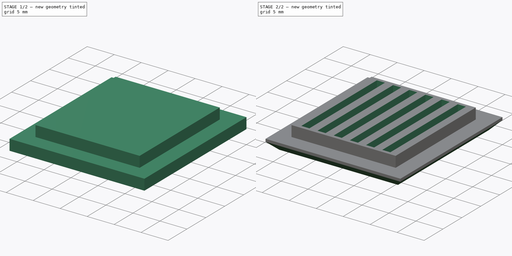
[diagram: build sequence overview — one tinted view per stage of 2, left to right]
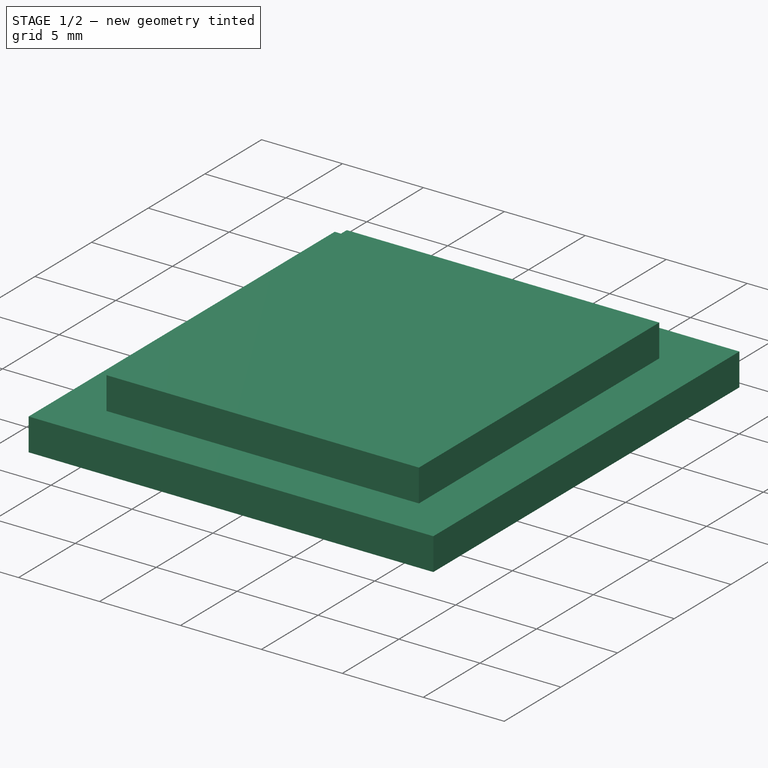
[diagram: stage 1 of 2 — iso view after this stage's code; geometry added in this stage tinted green]
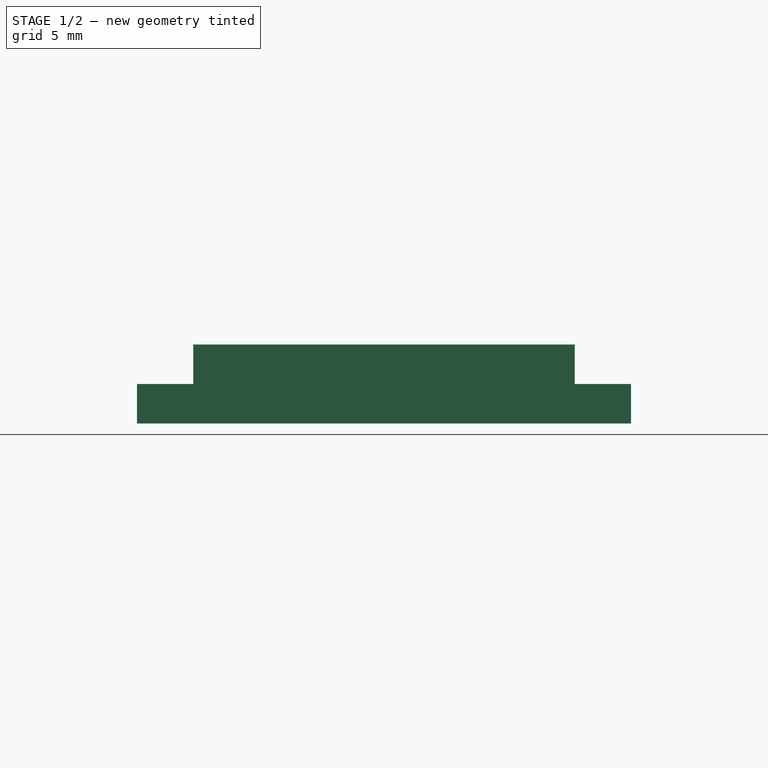
[diagram: stage 1 of 2 — front view after this stage's code; geometry added in this stage tinted green]
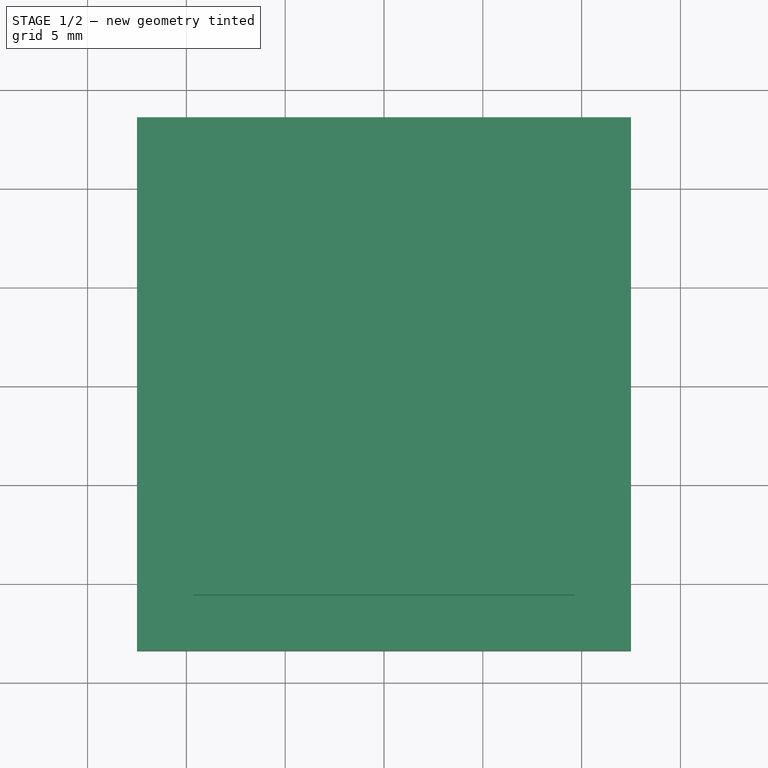
[diagram: stage 1 of 2 — top view after this stage's code; geometry added in this stage tinted green]
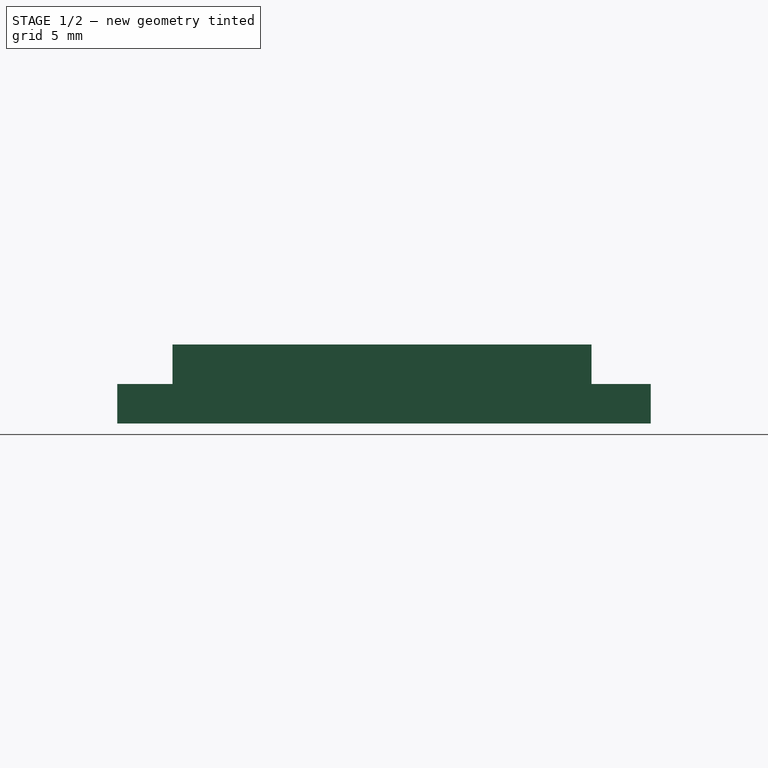
[diagram: stage 1 of 2 — right view after this stage's code; geometry added in this stage tinted green]
FCSTD DOCUMENT  (FreeCAD 0.19R19180 (Git))
Label: side_grill
License: All rights reserved
LicenseURL: http://en.wikipedia.org/wiki/All_rights_reserved
objects: Sketcher::SketchObject×3, PartDesign::Pad×2, PartDesign::Pocket×1, PartDesign::Chamfer×1, PartDesign::Body×1
note: 11 computed .brp shape members not serialized (recipe doc carries the construction recipe); baked Part::Feature solids carry a one-line shape summary decoded from their .brp

FEATURE [Sketcher::SketchObject] Sketch
  MapMode = 5
  Support = -> [XY_Plane]
  sketch-geometry (4):
    g0: LineSegment StartX=-12.5 StartY=13.6 StartZ=0 EndX=12.5 EndY=13.6 EndZ=0
    g1: LineSegment StartX=12.5 StartY=13.6 StartZ=0 EndX=12.5 EndY=-13.4 EndZ=0
    g2: LineSegment StartX=12.5 StartY=-13.4 StartZ=0 EndX=-12.5 EndY=-13.4 EndZ=0
    g3: LineSegment StartX=-12.5 StartY=-13.4 StartZ=0 EndX=-12.5 EndY=13.6 EndZ=0
  constraints (12):
    c: Coincident(g0,g1)
    c: Coincident(g1,g2)
    c: Coincident(g2,g3)
    c: Coincident(g3,g0)
    c: Horizontal(g0)
    c: Horizontal(g2)
    c: Vertical(g1)
    c: Vertical(g3)
    c: DistanceX(g0,g0) = 25
    c: DistanceY(g3,g3) = 27
    c: DistanceX(g0,g-1) = 12.5
    c: DistanceY(g-1,g0) = 13.6
FEATURE [PartDesign::Pad] Pad
  Length = 2
  Length2 = 100
  Profile = -> Sketch
  Type = 0
FEATURE [Sketcher::SketchObject] Sketch001
  MapMode = 5
  Placement = pos=(0,0,2) rot=(0,0,1;0rad)
  Support = -> [Pad]
  sketch-geometry (4):
    g0: LineSegment StartX=-9.65 StartY=10.6 StartZ=0 EndX=9.65 EndY=10.6 EndZ=0
    g1: LineSegment StartX=9.65 StartY=10.6 StartZ=0 EndX=9.65 EndY=-10.6 EndZ=0
    g2: LineSegment StartX=9.65 StartY=-10.6 StartZ=0 EndX=-9.65 EndY=-10.6 EndZ=0
    g3: LineSegment StartX=-9.65 StartY=-10.6 StartZ=0 EndX=-9.65 EndY=10.6 EndZ=0
  constraints (12):
    c: Coincident(g0,g1)
    c: Coincident(g1,g2)
    c: Coincident(g2,g3)
    c: Coincident(g3,g0)
    c: Horizontal(g0)
    c: Horizontal(g2)
    c: Vertical(g1)
    c: Vertical(g3)
    c: DistanceX(g0,g0) = 19.3
    c: DistanceY(g3,g3) = 21.2
    c: DistanceX(g0,g-1) = 9.65
    c: DistanceY(g-1,g0) = 10.6
FEATURE [PartDesign::Pad] Pad001
  BaseFeature = -> Pad
  Length = 2
  Length2 = 100
  Profile = -> Sketch001
  Type = 0
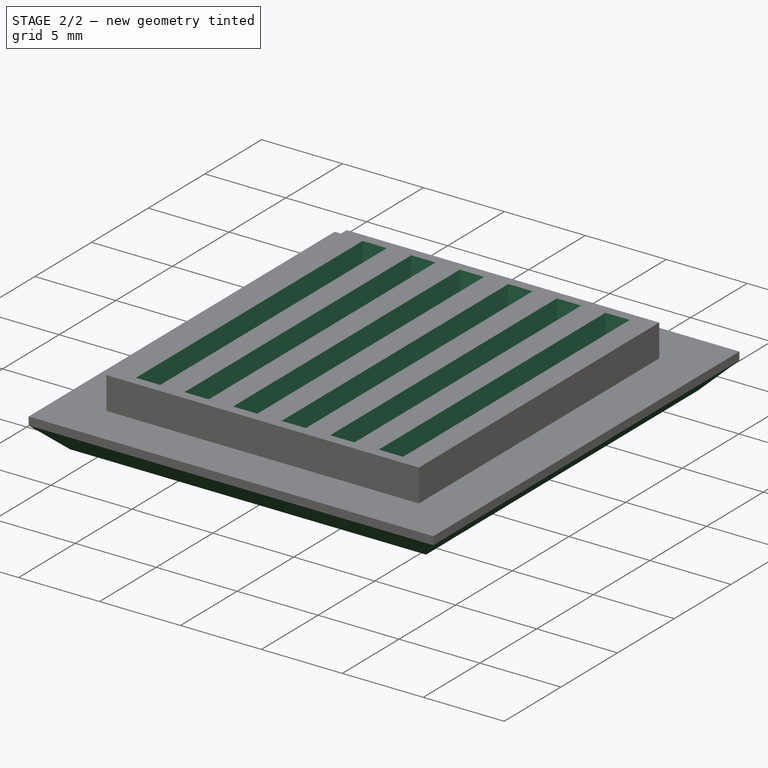
[diagram: stage 2 of 2 — iso view after this stage's code; geometry added in this stage tinted green]
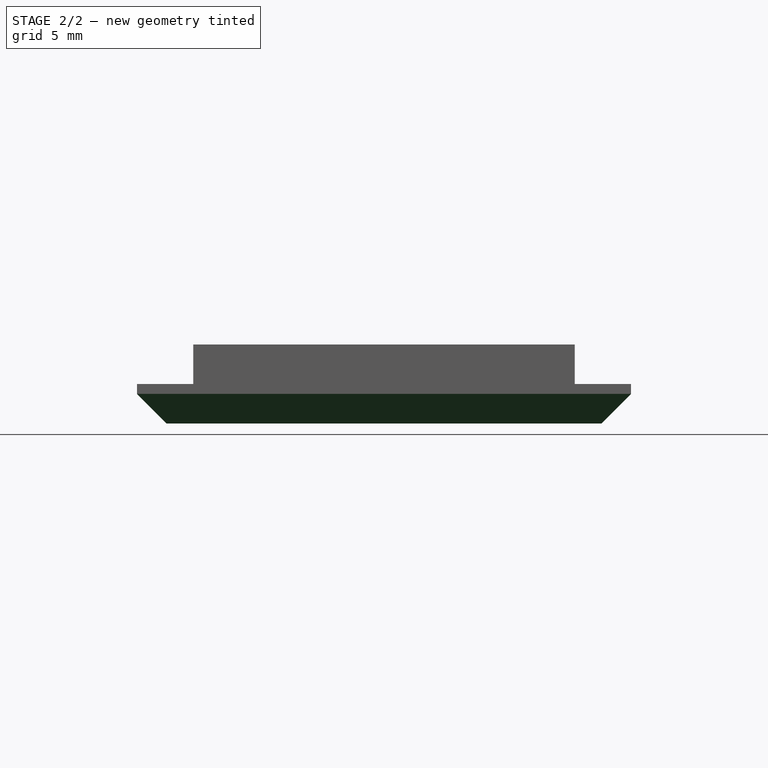
[diagram: stage 2 of 2 — front view after this stage's code; geometry added in this stage tinted green]
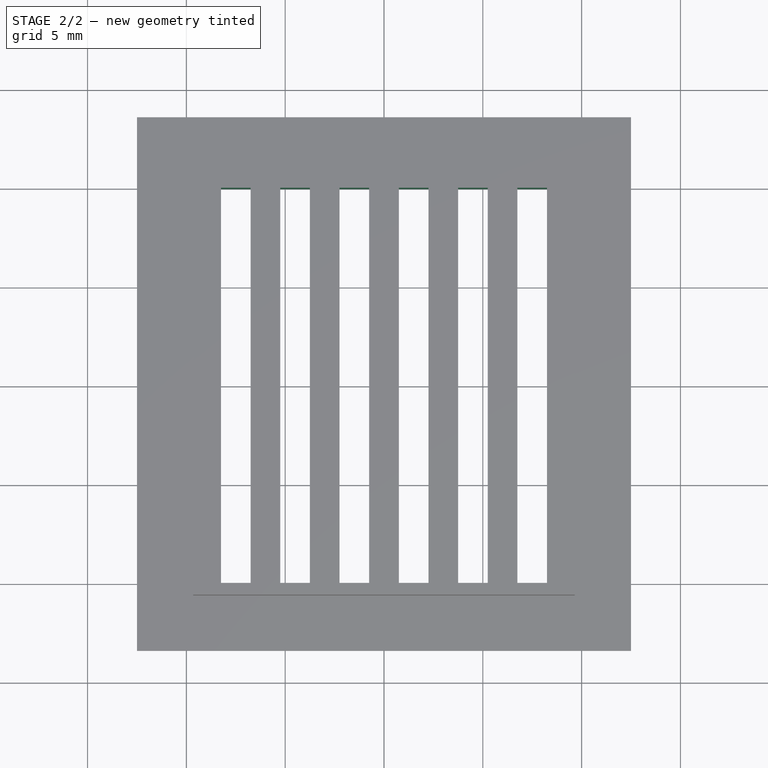
[diagram: stage 2 of 2 — top view after this stage's code; geometry added in this stage tinted green]
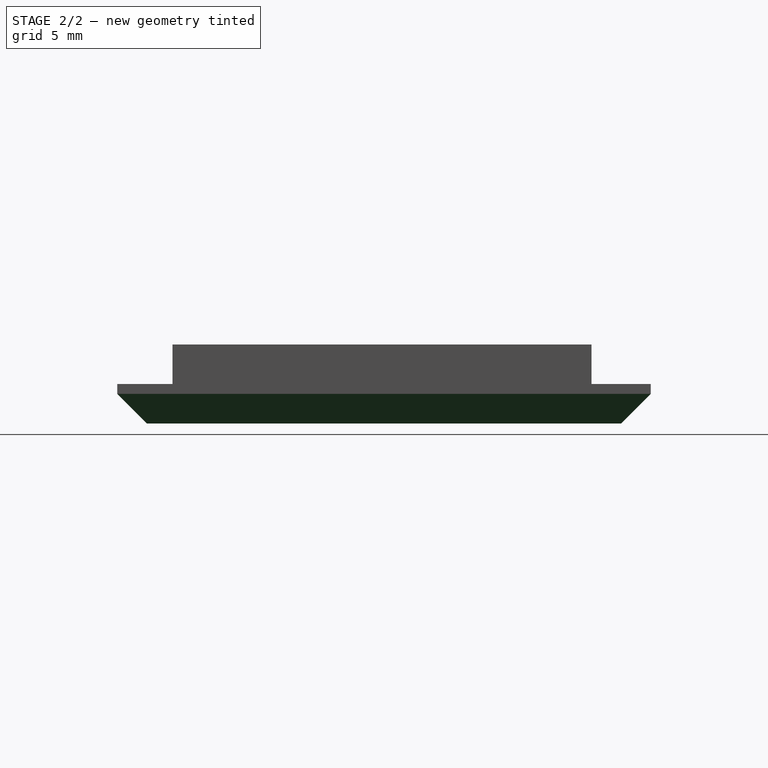
[diagram: stage 2 of 2 — right view after this stage's code; geometry added in this stage tinted green]
FEATURE [Sketcher::SketchObject] Sketch002
  MapMode = 5
  Placement = pos=(0,0,4) rot=(0,0,1;0rad)
  Support = -> [Pad001]
  sketch-geometry (24):
    g0: LineSegment StartX=0.75 StartY=10 StartZ=0 EndX=2.25 EndY=10 EndZ=0
    g1: LineSegment StartX=2.25 StartY=10 StartZ=0 EndX=2.25 EndY=-10 EndZ=0
    g2: LineSegment StartX=2.25 StartY=-10 StartZ=0 EndX=0.75 EndY=-10 EndZ=0
    g3: LineSegment StartX=0.75 StartY=-10 StartZ=0 EndX=0.75 EndY=10 EndZ=0
    g4: LineSegment StartX=3.75 StartY=10 StartZ=0 EndX=5.25 EndY=10 EndZ=0
    g5: LineSegment StartX=5.25 StartY=10 StartZ=0 EndX=5.25 EndY=-10 EndZ=0
    g6: LineSegment StartX=5.25 StartY=-10 StartZ=0 EndX=3.75 EndY=-10 EndZ=0
    g7: LineSegment StartX=3.75 StartY=-10 StartZ=0 EndX=3.75 EndY=10 EndZ=0
    g8: LineSegment StartX=6.75 StartY=10 StartZ=0 EndX=8.25 EndY=10 EndZ=0
    g9: LineSegment StartX=8.25 StartY=10 StartZ=0 EndX=8.25 EndY=-10 EndZ=0
    g10: LineSegment StartX=8.25 StartY=-10 StartZ=0 EndX=6.75 EndY=-10 EndZ=0
    g11: LineSegment StartX=6.75 StartY=-10 StartZ=0 EndX=6.75 EndY=10 EndZ=0
    g12: LineSegment StartX=-2.25 StartY=10 StartZ=0 EndX=-0.75 EndY=10 EndZ=0
    g13: LineSegment StartX=-0.75 StartY=10 StartZ=0 EndX=-0.75 EndY=-10 EndZ=0
    g14: LineSegment StartX=-0.75 StartY=-10 StartZ=0 EndX=-2.25 EndY=-10 EndZ=0
    g15: LineSegment StartX=-2.25 StartY=-10 StartZ=0 EndX=-2.25 EndY=10 EndZ=0
    g16: LineSegment StartX=-5.25 StartY=10 StartZ=0 EndX=-3.75 EndY=10 EndZ=0
    g17: LineSegment StartX=-3.75 StartY=10 StartZ=0 EndX=-3.75 EndY=-10 EndZ=0
    g18: LineSegment StartX=-3.75 StartY=-10 StartZ=0 EndX=-5.25 EndY=-10 EndZ=0
    g19: LineSegment StartX=-5.25 StartY=-10 StartZ=0 EndX=-5.25 EndY=10 EndZ=0
    g20: LineSegment StartX=-8.25 StartY=10 StartZ=0 EndX=-6.75 EndY=10 EndZ=0
    g21: LineSegment StartX=-6.75 StartY=10 StartZ=0 EndX=-6.75 EndY=-10 EndZ=0
    g22: LineSegment StartX=-6.75 StartY=-10 StartZ=0 EndX=-8.25 EndY=-10 EndZ=0
    g23: LineSegment StartX=-8.25 StartY=-10 StartZ=0 EndX=-8.25 EndY=10 EndZ=0
  constraints (72):
    c: Coincident(g0,g1)
    c: Coincident(g1,g2)
    c: Coincident(g2,g3)
    c: Coincident(g3,g0)
    c: Horizontal(g0)
    c: Horizontal(g2)
    c: Vertical(g1)
    c: Vertical(g3)
    c: Coincident(g4,g5)
    c: Coincident(g5,g6)
    c: Coincident(g6,g7)
    c: Coincident(g7,g4)
    c: Horizontal(g4)
    c: Horizontal(g6)
    c: Vertical(g5)
    c: Vertical(g7)
    c: Coincident(g8,g9)
    c: Coincident(g9,g10)
    c: Coincident(g10,g11)
    c: Coincident(g11,g8)
    c: Horizontal(g8)
    c: Horizontal(g10)
    c: Vertical(g9)
    c: Vertical(g11)
    c: DistanceX(g-1,g0) = 0.75
    c: DistanceX(g0,g0) = 1.5
    c: Equal(g0,g4)
    c: Equal(g4,g8)
    c: DistanceY(g3,g3) = 20
    c: DistanceY(g-1,g0) = 10
    c: Horizontal(g4,g0)
    c: Horizontal(g0,g8)
    c: Horizontal(g1,g6)
    c: Horizontal(g6,g10)
    c: DistanceX(g0,g4) = 1.5
    c: DistanceX(g4,g8) = 1.5
    c: Coincident(g12,g13)
    c: Coincident(g13,g14)
    c: Coincident(g14,g15)
    c: Coincident(g15,g12)
    c: Horizontal(g12)
    c: Horizontal(g14)
    c: Vertical(g13)
    c: Vertical(g15)
    c: Coincident(g16,g17)
    c: Coincident(g17,g18)
    c: Coincident(g18,g19)
    c: Coincident(g19,g16)
    c: Horizontal(g16)
    c: Horizontal(g18)
    c: Vertical(g17)
    c: Vertical(g19)
    c: Coincident(g20,g21)
    c: Coincident(g21,g22)
    c: Coincident(g22,g23)
    c: Coincident(g23,g20)
    c: Horizontal(g20)
    c: Horizontal(g22)
    c: Vertical(g21)
    c: Vertical(g23)
    c: Horizontal(g0,g12)
    c: Horizontal(g12,g16)
    c: Horizontal(g16,g20)
    c: Horizontal(g2,g13)
    c: Horizontal(g13,g17)
    c: Horizontal(g17,g21)
    c: DistanceX(g12,g-1) = 0.75
    c: DistanceX(g12,g12) = 1.5
    c: Equal(g12,g16)
    c: Equal(g16,g20)
    c: DistanceX(g16,g12) = 1.5
    c: DistanceX(g20,g16) = 1.5
FEATURE [PartDesign::Pocket] Pocket
  BaseFeature = -> Pad001
  Length = 5
  Length2 = 100
  Profile = -> Sketch002
  Type = 0
FEATURE [PartDesign::Chamfer] Chamfer
  Base = -> Pocket [Edge3,Edge9,Edge6,Edge11]
  BaseFeature = -> Pocket
  Size = 1.5
FEATURE [PartDesign::Body] Body
  Group = -> [Sketch,Pad,Sketch001,Pad001,Sketch002,Pocket,Chamfer]
  Origin = -> Origin
  Tip = -> Chamfer
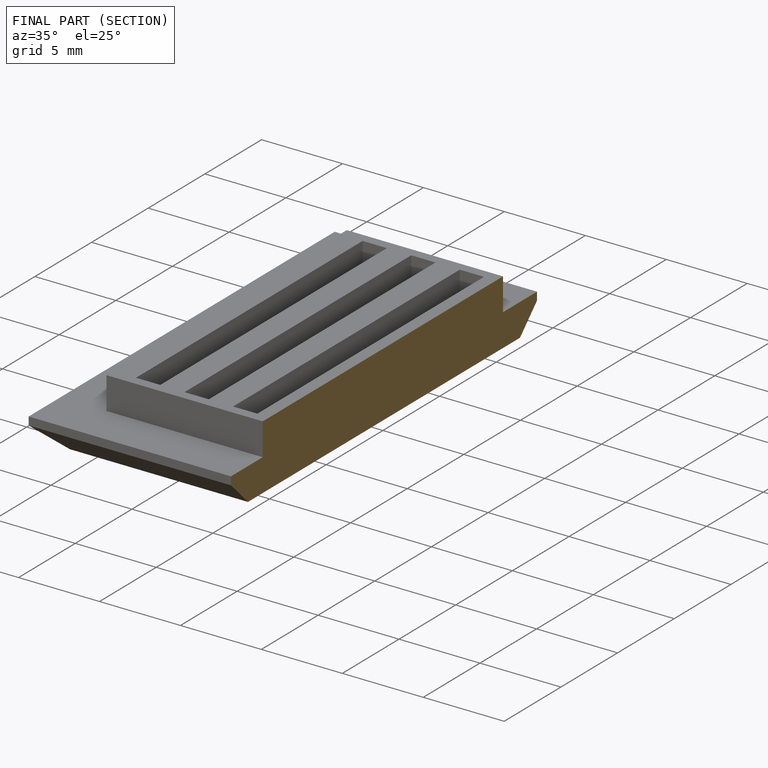
[diagram: finished part — half-section view (interior)]
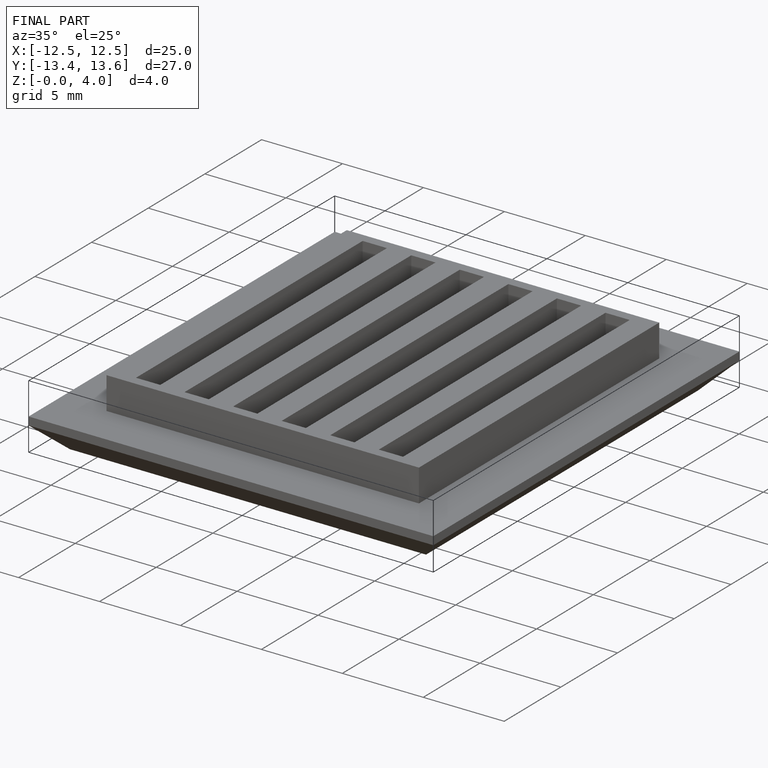
[diagram: finished part — iso view with bounding-box wireframe]
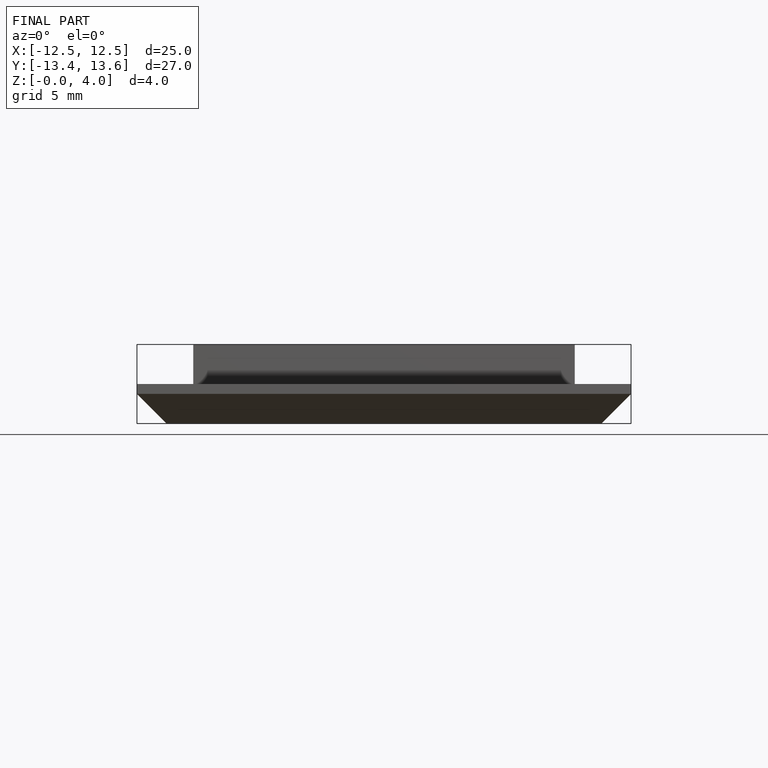
[diagram: finished part — front view with bounding-box wireframe]
